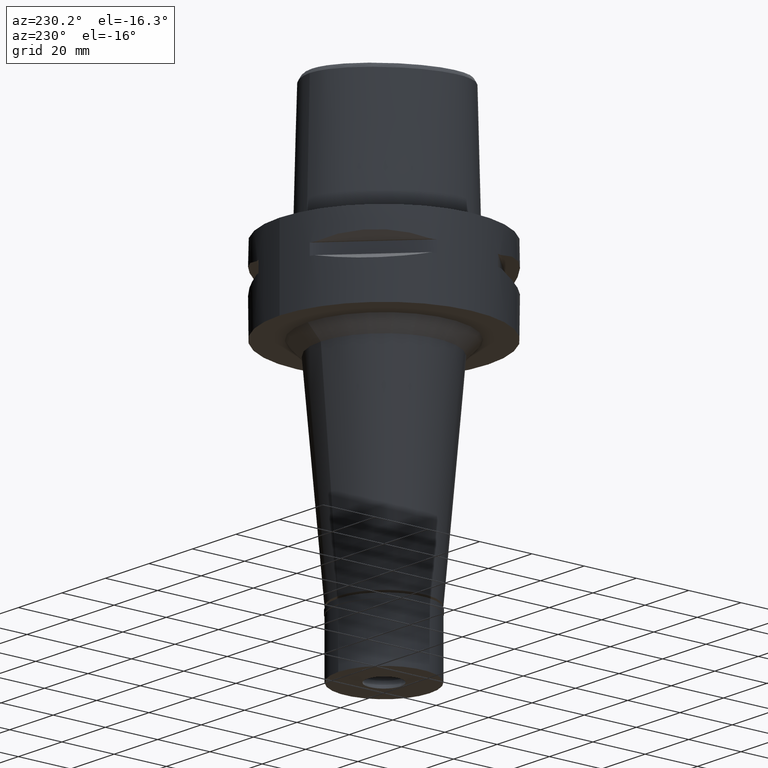
[diagram: clean part render]
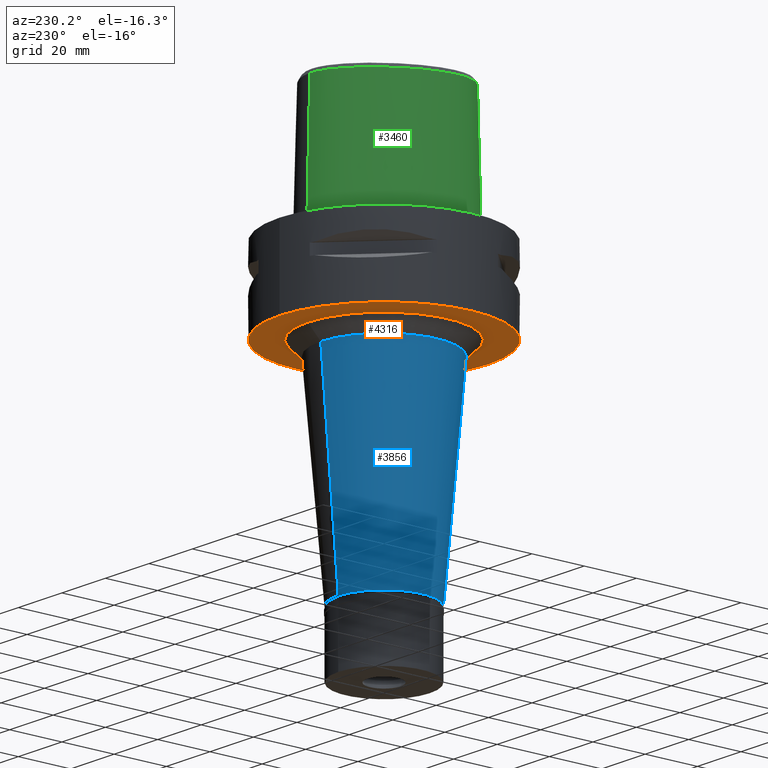
[diagram: same view with three faces highlighted in distinct colors, each labeled with its STEP entity id]
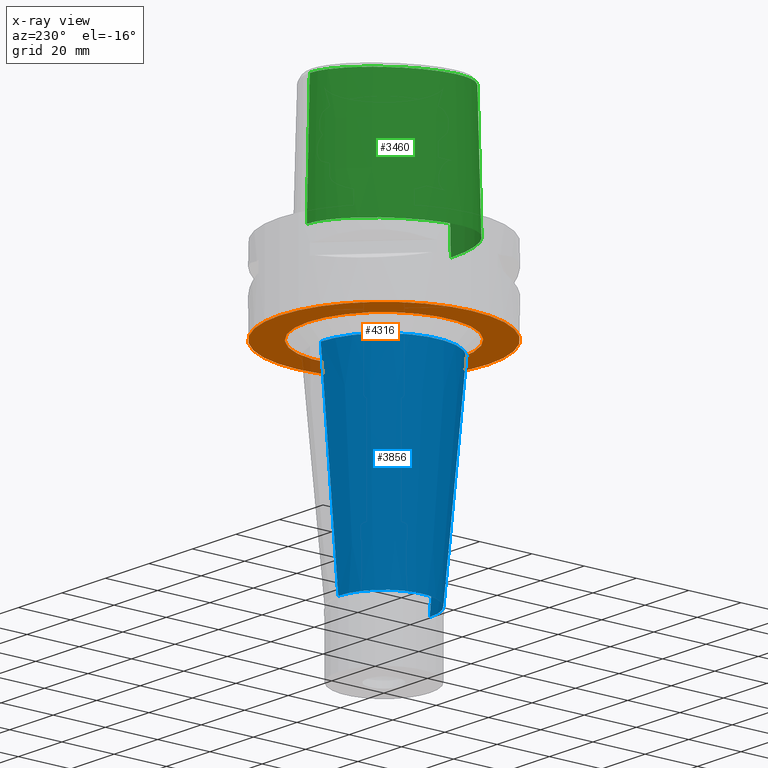
[diagram: x-ray of the same camera — body ghosted, the three highlighted faces saturated]
A machine part, auxiliary view with three faces highlighted in distinct colors.
The next image is the same camera in x-ray (body ghosted, the three faces saturated) — at least one of them is partly hidden behind the body in this view.
Their STEP definitions:

[orange] entity #4316 — the highlighted planar face has unit normal (0, 0, -1).
#172 = EDGE_CURVE ( 'NONE', #1265, #3674, #1290, .T. ) ;
#368 = VERTEX_POINT ( 'NONE', #1227 ) ;
#496 = ORIENTED_EDGE ( 'NONE', *, *, #1636, .F. ) ;
#651 = EDGE_LOOP ( 'NONE', ( #3302, #496 ) ) ;
#786 = CIRCLE ( 'NONE', #2287, 40.00000000000000000 ) ;
#1042 = EDGE_CURVE ( 'NONE', #3674, #1265, #4939, .T. ) ;
#1099 = ORIENTED_EDGE ( 'NONE', *, *, #1042, .F. ) ;
#1115 = CARTESIAN_POINT ( 'NONE',  ( 0.0000000000000000000, 0.0000000000000000000, -30.00000000000000000 ) ) ;
#1227 = CARTESIAN_POINT ( 'NONE',  ( 0.0000000000000000000, -40.00000000000000000, -30.00000000000000000 ) ) ;
#1265 = VERTEX_POINT ( 'NONE', #3253 ) ;
#1275 = VERTEX_POINT ( 'NONE', #3623 ) ;
#1290 = CIRCLE ( 'NONE', #5106, 29.21038049243999879 ) ;
#1384 = DIRECTION ( 'NONE',  ( 0.0000000000000000000, 0.0000000000000000000, 1.000000000000000000 ) ) ;
#1456 = CIRCLE ( 'NONE', #2941, 40.00000000000000000 ) ;
#1529 = EDGE_CURVE ( 'NONE', #1275, #368, #786, .T. ) ;
#1582 = DIRECTION ( 'NONE',  ( 0.0000000000000000000, 0.0000000000000000000, -1.000000000000000000 ) ) ;
#1636 = EDGE_CURVE ( 'NONE', #368, #1275, #1456, .T. ) ;
#1656 = FACE_BOUND ( 'NONE', #4721, .T. ) ;
#1717 = DIRECTION ( 'NONE',  ( 0.0000000000000000000, 1.000000000000000000, 0.0000000000000000000 ) ) ;
#1913 = DIRECTION ( 'NONE',  ( 0.0000000000000000000, 1.000000000000000000, 0.0000000000000000000 ) ) ;
#1925 = DIRECTION ( 'NONE',  ( 0.0000000000000000000, 0.0000000000000000000, -1.000000000000000000 ) ) ;
#2287 = AXIS2_PLACEMENT_3D ( 'NONE', #3372, #1384, #1717 ) ;
#2374 = FACE_OUTER_BOUND ( 'NONE', #651, .T. ) ;
#2691 = AXIS2_PLACEMENT_3D ( 'NONE', #5119, #1582, #1913 ) ;
#2941 = AXIS2_PLACEMENT_3D ( 'NONE', #2978, #3764, #4126 ) ;
#2978 = CARTESIAN_POINT ( 'NONE',  ( 0.0000000000000000000, 1.303207891312999846E-14, -30.00000000000000000 ) ) ;
#3253 = CARTESIAN_POINT ( 'NONE',  ( 0.0000000000000000000, -29.21038049243999879, -30.00000000000000000 ) ) ;
#3302 = ORIENTED_EDGE ( 'NONE', *, *, #1529, .F. ) ;
#3372 = CARTESIAN_POINT ( 'NONE',  ( 0.0000000000000000000, 1.303207891312999846E-14, -30.00000000000000000 ) ) ;
#3433 = ORIENTED_EDGE ( 'NONE', *, *, #172, .F. ) ;
#3623 = CARTESIAN_POINT ( 'NONE',  ( 0.0000000000000000000, 40.00000000000000000, -30.00000000000000000 ) ) ;
#3674 = VERTEX_POINT ( 'NONE', #4233 ) ;
#3764 = DIRECTION ( 'NONE',  ( 0.0000000000000000000, 0.0000000000000000000, 1.000000000000000000 ) ) ;
#3841 = DIRECTION ( 'NONE',  ( 0.0000000000000000000, 0.0000000000000000000, -1.000000000000000000 ) ) ;
#4126 = DIRECTION ( 'NONE',  ( 0.0000000000000000000, -1.000000000000000000, 0.0000000000000000000 ) ) ;
#4233 = CARTESIAN_POINT ( 'NONE',  ( 0.0000000000000000000, 29.21038049243999879, -30.00000000000000000 ) ) ;
#4283 = PLANE ( 'NONE',  #4319 ) ;
#4316 = ADVANCED_FACE ( 'NONE', ( #2374, #1656 ), #4283, .T. ) ;
#4319 = AXIS2_PLACEMENT_3D ( 'NONE', #4654, #1925, #5099 ) ;
#4654 = CARTESIAN_POINT ( 'NONE',  ( 0.0000000000000000000, 0.0000000000000000000, -30.00000000000000000 ) ) ;
#4721 = EDGE_LOOP ( 'NONE', ( #1099, #3433 ) ) ;
#4730 = DIRECTION ( 'NONE',  ( 0.0000000000000000000, -1.000000000000000000, 0.0000000000000000000 ) ) ;
#4939 = CIRCLE ( 'NONE', #2691, 29.21038049243999879 ) ;
#5099 = DIRECTION ( 'NONE',  ( 0.0000000000000000000, -1.000000000000000000, 0.0000000000000000000 ) ) ;
#5106 = AXIS2_PLACEMENT_3D ( 'NONE', #1115, #3841, #4730 ) ;
#5119 = CARTESIAN_POINT ( 'NONE',  ( 0.0000000000000000000, 0.0000000000000000000, -30.00000000000000000 ) ) ;

[blue] entity #3856 — the highlighted conical surface has half-angle 5 deg.
#75 = CONICAL_SURFACE ( 'NONE', #659, 20.85519024622000117, 0.08726646259969973729 ) ;
#267 = DIRECTION ( 'NONE',  ( 0.0000000000000000000, 0.08715574274767391716, -0.9961946980917442129 ) ) ;
#313 = CARTESIAN_POINT ( 'NONE',  ( 0.0000000000000000000, 24.21038049243999879, -35.00000000000000000 ) ) ;
#324 = CARTESIAN_POINT ( 'NONE',  ( 0.0000000000000000000, 0.0000000000000000000, -35.00000000000000000 ) ) ;
#407 = DIRECTION ( 'NONE',  ( 0.0000000000000000000, 1.000000000000000000, 0.0000000000000000000 ) ) ;
#659 = AXIS2_PLACEMENT_3D ( 'NONE', #4741, #5134, #1236 ) ;
#826 = CARTESIAN_POINT ( 'NONE',  ( 0.0000000000000000000, 0.0000000000000000000, -111.6999999999999886 ) ) ;
#850 = EDGE_CURVE ( 'NONE', #3951, #3576, #2254, .T. ) ;
#1142 = DIRECTION ( 'NONE',  ( 0.0000000000000000000, 0.0000000000000000000, -1.000000000000000000 ) ) ;
#1152 = VERTEX_POINT ( 'NONE', #2716 ) ;
#1168 = CIRCLE ( 'NONE', #4067, 24.21038049243999879 ) ;
#1188 = EDGE_LOOP ( 'NONE', ( #5002, #2866, #2717, #4676 ) ) ;
#1236 = DIRECTION ( 'NONE',  ( 0.0000000000000000000, 1.000000000000000000, 0.0000000000000000000 ) ) ;
#1489 = DIRECTION ( 'NONE',  ( 0.0000000000000000000, -0.08715574274767391716, -0.9961946980917442129 ) ) ;
#1692 = AXIS2_PLACEMENT_3D ( 'NONE', #826, #1998, #407 ) ;
#1998 = DIRECTION ( 'NONE',  ( 0.0000000000000000000, 0.0000000000000000000, 1.000000000000000000 ) ) ;
#2211 = EDGE_CURVE ( 'NONE', #1152, #3576, #4770, .T. ) ;
#2254 = LINE ( 'NONE', #4243, #2862 ) ;
#2365 = DIRECTION ( 'NONE',  ( 0.0000000000000000000, -1.000000000000000000, 0.0000000000000000000 ) ) ;
#2705 = FACE_OUTER_BOUND ( 'NONE', #1188, .T. ) ;
#2716 = CARTESIAN_POINT ( 'NONE',  ( 0.0000000000000000000, 17.50000000000000000, -111.6999999999999886 ) ) ;
#2717 = ORIENTED_EDGE ( 'NONE', *, *, #3173, .T. ) ;
#2862 = VECTOR ( 'NONE', #267, 1000.000000000000000 ) ;
#2866 = ORIENTED_EDGE ( 'NONE', *, *, #850, .F. ) ;
#3173 = EDGE_CURVE ( 'NONE', #3951, #3998, #1168, .T. ) ;
#3437 = LINE ( 'NONE', #4660, #4229 ) ;
#3490 = CARTESIAN_POINT ( 'NONE',  ( 0.0000000000000000000, -24.21038049243999879, -35.00000000000000000 ) ) ;
#3576 = VERTEX_POINT ( 'NONE', #5049 ) ;
#3624 = EDGE_CURVE ( 'NONE', #3998, #1152, #3437, .T. ) ;
#3856 = ADVANCED_FACE ( 'NONE', ( #2705 ), #75, .T. ) ;
#3951 = VERTEX_POINT ( 'NONE', #3490 ) ;
#3998 = VERTEX_POINT ( 'NONE', #313 ) ;
#4067 = AXIS2_PLACEMENT_3D ( 'NONE', #324, #1142, #2365 ) ;
#4229 = VECTOR ( 'NONE', #1489, 1000.000000000000000 ) ;
#4243 = CARTESIAN_POINT ( 'NONE',  ( 0.0000000000000000000, -24.21038049243999879, -35.00000000000000000 ) ) ;
#4660 = CARTESIAN_POINT ( 'NONE',  ( 0.0000000000000000000, 24.21038049243999879, -35.00000000000000000 ) ) ;
#4676 = ORIENTED_EDGE ( 'NONE', *, *, #3624, .T. ) ;
#4741 = CARTESIAN_POINT ( 'NONE',  ( 0.0000000000000000000, 0.0000000000000000000, -73.34999999999999432 ) ) ;
#4770 = CIRCLE ( 'NONE', #1692, 17.50000000000000000 ) ;
#5002 = ORIENTED_EDGE ( 'NONE', *, *, #2211, .T. ) ;
#5049 = CARTESIAN_POINT ( 'NONE',  ( 0.0000000000000000000, -17.50000000000000000, -111.6999999999999886 ) ) ;
#5134 = DIRECTION ( 'NONE',  ( 0.0000000000000000000, 0.0000000000000000000, 1.000000000000000000 ) ) ;

[green] entity #3460 — the highlighted face is a freeform B-spline surface patch.
#3 = CARTESIAN_POINT ( 'NONE',  ( 0.8850788435429999268, 29.16624660155000015, 15.19677031794999955 ) ) ;
#23 = EDGE_CURVE ( 'NONE', #2994, #1189, #4524, .T. ) ;
#28 = VERTEX_POINT ( 'NONE', #5014 ) ;
#30 = CARTESIAN_POINT ( 'NONE',  ( -1.451045074373000022E-08, -24.57504746727000011, 40.00000005214000254 ) ) ;
#31 = CARTESIAN_POINT ( 'NONE',  ( -26.00056139767000118, -13.24168029910000044, 15.19677031794999955 ) ) ;
#32 = CARTESIAN_POINT ( 'NONE',  ( -1.791332517422718151, -25.02133236723712173, 20.81740716610669395 ) ) ;
#56 = CARTESIAN_POINT ( 'NONE',  ( -12.43420514706000013, 23.14497626767000327, 47.45113997237000092 ) ) ;
#77 = CARTESIAN_POINT ( 'NONE',  ( 0.8321919550414000888, -24.38153428777999920, 47.45113997237000092 ) ) ;
#105 = CARTESIAN_POINT ( 'NONE',  ( -6.584202213235999857, -24.46732445046000137, 31.32395514516000290 ) ) ;
#148 = CARTESIAN_POINT ( 'NONE',  ( -24.95856547251000279, -14.40983449368000180, 31.32395514516000290 ) ) ;
#212 = CARTESIAN_POINT ( 'NONE',  ( -20.71467387648612757, -18.66855143330699818, 46.52070903171005511 ) ) ;
#236 = CARTESIAN_POINT ( 'NONE',  ( -4.198926685531662706, -24.72160612811941505, 26.75259212958649613 ) ) ;
#264 = CARTESIAN_POINT ( 'NONE',  ( -26.68853359098593003, -5.367220537272975989, 46.52070903171005511 ) ) ;
#265 = CARTESIAN_POINT ( 'NONE',  ( -2.182391158249093355, -24.80062287573412760, 28.99314679185866694 ) ) ;
#284 = ORIENTED_EDGE ( 'NONE', *, *, #4868, .F. ) ;
#285 = CARTESIAN_POINT ( 'NONE',  ( 3.426421325429000475E-11, 29.57499999998999840, 6.813068627782999373E-14 ) ) ;
#295 = CARTESIAN_POINT ( 'NONE',  ( -1.482686770870140336, -24.81966152212502763, 29.30289444251079445 ) ) ;
#321 = CARTESIAN_POINT ( 'NONE',  ( -1.722296434336843429, -24.81387508079693660, 29.21144792399064372 ) ) ;
#348 = CARTESIAN_POINT ( 'NONE',  ( -25.23075706258000039, 6.836210430874999133, -0.9304145092621000090 ) ) ;
#349 = CARTESIAN_POINT ( 'NONE',  ( -3.896481458106559437, -24.85034248778501009, 22.65020889969181184 ) ) ;
#373 = CARTESIAN_POINT ( 'NONE',  ( -26.66520864470000163, -5.367805583557000659, 47.45113997237000092 ) ) ;
#374 = CARTESIAN_POINT ( 'NONE',  ( -2.349040166736644064, -24.99044712210630692, 21.10040994411707516 ) ) ;
#375 = EDGE_CURVE ( 'NONE', #1487, #2482, #1973, .T. ) ;
#396 = CARTESIAN_POINT ( 'NONE',  ( -26.50159624694000371, -8.602222727240999234, 47.45113997237000092 ) ) ;
#397 = CARTESIAN_POINT ( 'NONE',  ( -3.825895809632643640, -24.85889621362734303, 22.53711802513209506 ) ) ;
#423 = CARTESIAN_POINT ( 'NONE',  ( -26.01411824369999692, 1.699187952778999922, 31.32395514516000290 ) ) ;
#448 = CARTESIAN_POINT ( 'NONE',  ( 0.5552374596068999635, 28.37983254369000008, 47.45113997237000092 ) ) ;
#449 = CARTESIAN_POINT ( 'NONE',  ( -3.227056402119997447, -24.92183285210591492, 21.79239637393092721 ) ) ;
#473 = CARTESIAN_POINT ( 'NONE',  ( 0.5548736444810999924, -24.38637832012999951, 47.45113997237000092 ) ) ;
#499 = CARTESIAN_POINT ( 'NONE',  ( -18.36798846330000146, -21.11924011219999997, 15.19677031794999955 ) ) ;
#550 = CARTESIAN_POINT ( 'NONE',  ( -2.373852717712999993, -25.21827343833000157, 15.19677031794999955 ) ) ;
#597 = CARTESIAN_POINT ( 'NONE',  ( -4.602965878455999693, -24.35127227233000013, 40.00000000000000000 ) ) ;
#630 = CARTESIAN_POINT ( 'NONE',  ( -0.9629684636073497783, 28.41206041874252008, 46.52070903171005511 ) ) ;
#631 = CARTESIAN_POINT ( 'NONE',  ( -2.249867388139983770, -24.79844751147312110, 28.95562542824797347 ) ) ;
#634 = B_SPLINE_CURVE_WITH_KNOTS ( 'NONE', 3,
 ( #1951, #1565, #1857, #2203, #3783, #2686, #212, #3387, #653, #1804, #2660, #4978, #2614, #264, #3860, #999, #1910, #2249, #4192, #5033, #4270, #2587, #2997, #630, #711 ),
 .UNSPECIFIED., .F., .F.,
 ( 4, 1, 1, 1, 1, 1, 1, 1, 1, 1, 1, 1, 1, 1, 1, 1, 1, 1, 1, 1, 1, 1, 4 ),
 ( 0.0000000000000000000, 0.03735859270279192484, 0.08111502030725337153, 0.1248714479117149362, 0.1686278755159663911, 0.2123843031204278309, 0.2561407307248894094, 0.2780189445269626858, 0.2998971583291408782, 0.3217753721314240978, 0.3436535859336024012, 0.3874100135380638688, 0.4311664411423154486, 0.4749228687467769161, 0.5186792963512384391, 0.5624357239554899079, 0.6499485791644129540, 0.7374614343731259458, 0.8249742895819438537, 0.8687307171863004607, 0.9124871447907410005, 0.9562435723951290267, 1.000000000000000000 ),
 .UNSPECIFIED. ) ;
#636 = CARTESIAN_POINT ( 'NONE',  ( -26.34912732470910157, -13.39455076042217385, 2.070062342244063935E-06 ) ) ;
#653 = CARTESIAN_POINT ( 'NONE',  ( -23.83579125613553273, -15.43164133759489332, 46.52070903171005511 ) ) ;
#660 = CARTESIAN_POINT ( 'NONE',  ( -27.68378748685482904, -8.751933587218399424, 2.070062342244063935E-06 ) ) ;
#681 = CARTESIAN_POINT ( 'NONE',  ( -4.536359085941239044, -24.72544551544415015, 25.35955479186052841 ) ) ;
#686 = CARTESIAN_POINT ( 'NONE',  ( -11.74025984123380084, -24.13566401246772131, 2.070062342244063935E-06 ) ) ;
#703 = CARTESIAN_POINT ( 'NONE',  ( -4.472216406693000579, -24.20008985674000357, 46.52070903171000538 ) ) ;
#711 = CARTESIAN_POINT ( 'NONE',  ( -1.302363811805000078E-11, 28.41206021534999593, 46.52071719450999154 ) ) ;
#712 = CARTESIAN_POINT ( 'NONE',  ( -3.205390121192459585, -24.76204090357539300, 28.22925085367091569 ) ) ;
#728 = DIRECTION ( 'NONE',  ( -5.731149799637813189E-13, -0.02499051295403921166, -0.9996876883618673881 ) ) ;
#735 = CARTESIAN_POINT ( 'NONE',  ( -9.316733117691999411, 26.81182150708999856, -0.9304145092621000090 ) ) ;
#736 = CARTESIAN_POINT ( 'NONE',  ( -4.550009659928405448, -24.73228693208369933, 25.03285394944704123 ) ) ;
#762 = CARTESIAN_POINT ( 'NONE',  ( -27.16099297665000023, -1.823107493887999864, 15.19677031794999955 ) ) ;
#763 = CARTESIAN_POINT ( 'NONE',  ( -0.5686770761276753738, -25.06378435149000339, 20.45000000000001350 ) ) ;
#791 = CARTESIAN_POINT ( 'NONE',  ( 0.6077626424049999976, 29.58843421447999944, -0.9304145092621000090 ) ) ;
#792 = CARTESIAN_POINT ( 'NONE',  ( -3.864901861996224763, -24.85421915751038924, 22.59833191710567490 ) ) ;
#815 = CARTESIAN_POINT ( 'NONE',  ( 0.5902542481390000706, 29.18556699088000173, 15.19677031794999955 ) ) ;
#840 = CARTESIAN_POINT ( 'NONE',  ( -24.48145222183000058, 6.531540493901000666, 31.32395514516000290 ) ) ;
#866 = CARTESIAN_POINT ( 'NONE',  ( -14.86558285775999977, -21.85772789082999878, 47.45113997237000092 ) ) ;
#868 = CARTESIAN_POINT ( 'NONE',  ( -3.797137772289172819, -24.86229941254662279, 22.49313827486259143 ) ) ;
#875 = ORIENTED_EDGE ( 'NONE', *, *, #3548, .F. ) ;
#890 = CARTESIAN_POINT ( 'NONE',  ( -20.94550183603999827, -18.97246392873000076, 31.32395514516000290 ) ) ;
#943 = CARTESIAN_POINT ( 'NONE',  ( -2.393548608089000052, -25.62160468917999978, -0.9304145092621000090 ) ) ;
#970 = CARTESIAN_POINT ( 'NONE',  ( -2.354156827336999935, -24.81494218747999980, 31.32395514516000290 ) ) ;
#999 = CARTESIAN_POINT ( 'NONE',  ( -25.64632274977875426, 1.601536978524678023, 46.52070903171005511 ) ) ;
#1017 = LINE ( 'NONE', #3824, #4324 ) ;
#1026 = CARTESIAN_POINT ( 'NONE',  ( -2.352923008986411713, -24.79499099983799226, 28.89459205334613401 ) ) ;
#1032 = CARTESIAN_POINT ( 'NONE',  ( -13.21796077126104763, 24.04386714829173499, 2.070062342244063935E-06 ) ) ;
#1053 = CARTESIAN_POINT ( 'NONE',  ( -4.322680882352820220, -24.71812462909635855, 26.45319451589575266 ) ) ;
#1067 = CARTESIAN_POINT ( 'NONE',  ( -4.516620139914707011, -24.24973684088320525, 44.34713935447333455 ) ) ;
#1075 = CARTESIAN_POINT ( 'NONE',  ( -4.183313010706772417, -24.72206008749300565, 26.78965014441196146 ) ) ;
#1080 = CARTESIAN_POINT ( 'NONE',  ( -21.42129056219241434, -19.59889644297837208, 2.070062342244063935E-06 ) ) ;
#1083 = CARTESIAN_POINT ( 'NONE',  ( -3.083107012282058967, -24.50056602082055690, 40.00000010711482901 ) ) ;
#1104 = CARTESIAN_POINT ( 'NONE',  ( -0.5644801122068427990, -24.83439132317404940, 29.52465347867334344 ) ) ;
#1136 = CARTESIAN_POINT ( 'NONE',  ( -2.892852093882000375, 28.17405733821000169, 47.45113997237000092 ) ) ;
#1137 = CARTESIAN_POINT ( 'NONE',  ( -4.544092989177816122, -24.72741046393047881, 25.25074796832976531 ) ) ;
#1164 = CARTESIAN_POINT ( 'NONE',  ( -24.85610464220000182, 6.683875462388000344, 15.19677031794999955 ) ) ;
#1165 = CARTESIAN_POINT ( 'NONE',  ( -1.748501813549842465, -25.02335543620021951, 20.79936485166496496 ) ) ;
#1189 = VERTEX_POINT ( 'NONE', #4829 ) ;
#1190 = CARTESIAN_POINT ( 'NONE',  ( -4.858745206270110643E-09, -24.74922215084186661, 33.03333351495469827 ) ) ;
#1191 = CARTESIAN_POINT ( 'NONE',  ( -2.979937744814999956, 28.57037853699000252, 31.32395514516000290 ) ) ;
#1202 = B_SPLINE_CURVE_WITH_KNOTS ( 'NONE', 3,
 ( #5057, #1497, #1104, #3105, #1911, #2687, #295, #5034, #3834, #4242, #321, #1527, #5087, #3449, #265, #631, #1026, #2227, #2331, #4271, #3075, #2615, #4701, #3807, #1422, #1858, #3862, #2280, #3500, #712, #1885, #4979, #1474, #2307, #3472, #4618, #2661, #3048, #4297, #1075, #4669, #236, #3028, #1053, #4641, #3886, #3419, #681, #1137, #2251, #2714, #736, #4193, #1830, #3916, #1805, #4591, #5008, #3389, #1448, #2639, #2998, #4216, #3134, #4428, #1941, #4351, #349, #792, #397, #2048, #868, #2814, #2462, #3531, #3944, #1581, #1651, #3581, #4017, #5116, #449, #4749, #2739, #374, #3236, #1555, #4826, #2409, #1967, #32, #3557, #4724, #1165, #4323, #763, #3604 ),
 .UNSPECIFIED., .F., .F.,
 ( 4, 2, 2, 1, 1, 1, 2, 2, 2, 2, 1, 1, 2, 2, 2, 1, 1, 1, 2, 2, 2, 2, 2, 1, 1, 2, 2, 2, 2, 1, 2, 2, 2, 2, 1, 1, 1, 2, 2, 2, 2, 1, 1, 2, 2, 2, 1, 1, 1, 2, 2, 2, 2, 2, 1, 1, 2, 2, 4 ),
 ( 0.0000000000000000000, 0.06249999999998992473, 0.09374999999998488709, 0.1093749999999823752, 0.1171874999999811123, 0.1210937499999804462, 0.1230468749999802797, 0.1249999999999800993, 0.1562499999999802935, 0.1718749999999803768, 0.1796874999999803491, 0.1835937499999803491, 0.1855468749999804878, 0.1874999999999806544, 0.2187499999999830969, 0.2343749999999845401, 0.2421874999999852063, 0.2460937499999855393, 0.2480468749999859279, 0.2499999999999863443, 0.3125000000000101030, 0.3437500000000223710, 0.3593750000000288103, 0.3671875000000316969, 0.3710937500000330846, 0.3730468750000334732, 0.3750000000000338063, 0.4375000000000313638, 0.4687500000000298095, 0.4843750000000289768, 0.4921875000000289768, 0.5000000000000289768, 0.5625000000000310862, 0.5937500000000318634, 0.6093750000000318634, 0.6171875000000319744, 0.6210937500000316414, 0.6230468750000315303, 0.6250000000000314193, 0.6562500000000272005, 0.6718750000000250910, 0.6796875000000240918, 0.6835937500000235367, 0.6855468750000230926, 0.6875000000000225375, 0.7187500000000142109, 0.7343750000000098810, 0.7421875000000075495, 0.7460937500000064393, 0.7480468750000061062, 0.7500000000000057732, 0.8124999999999988898, 0.8437499999999957812, 0.8593749999999942268, 0.8671874999999935607, 0.8710937499999932276, 0.8730468749999930056, 0.8749999999999927836, 1.000000000000000000 ),
 .UNSPECIFIED. ) ;
#1220 = CARTESIAN_POINT ( 'NONE',  ( -25.95531692224000153, -11.08496012566000033, 47.45113997237000092 ) ) ;
#1241 = CARTESIAN_POINT ( 'NONE',  ( -5.801139416968000617, 27.25218155801999842, 47.45113997237000092 ) ) ;
#1254 = ORIENTED_EDGE ( 'NONE', *, *, #4655, .F. ) ;
#1267 = CARTESIAN_POINT ( 'NONE',  ( -23.15870204153999978, -17.49879693291000038, 15.19677031794999955 ) ) ;
#1366 = CARTESIAN_POINT ( 'NONE',  ( -6.695047936615999618, -25.26858194700999860, -0.9304145092621000090 ) ) ;
#1381 = CARTESIAN_POINT ( 'NONE',  ( -9.304563379537732715, 26.79191401820675011, 2.070062342244063935E-06 ) ) ;
#1422 = CARTESIAN_POINT ( 'NONE',  ( -2.944900302943598280, -24.77298581947536960, 28.46923970402222537 ) ) ;
#1448 = CARTESIAN_POINT ( 'NONE',  ( -4.231109674115376862, -24.80473516988228866, 23.32640847146414487 ) ) ;
#1466 = CARTESIAN_POINT ( 'NONE',  ( -4.560197131398992632, -24.30012325357083469, 42.17356967723666372 ) ) ;
#1474 = CARTESIAN_POINT ( 'NONE',  ( -3.657706900528193028, -24.74222987758971115, 27.72260022702115023 ) ) ;
#1478 = CARTESIAN_POINT ( 'NONE',  ( -1.338855420046000202E-11, -25.57499999999999929, 7.449596495234999810E-14 ) ) ;
#1487 = VERTEX_POINT ( 'NONE', #4107 ) ;
#1497 = CARTESIAN_POINT ( 'NONE',  ( -0.2769662722958332046, -24.83629963747999625, 29.54999999999999716 ) ) ;
#1527 = CARTESIAN_POINT ( 'NONE',  ( -1.733314166582772708, -24.81359117582309537, 29.20692116581516729 ) ) ;
#1554 = CARTESIAN_POINT ( 'NONE',  ( -26.40443225111000203, 1.802817670160000052, 15.19677031794999955 ) ) ;
#1555 = CARTESIAN_POINT ( 'NONE',  ( -2.039991806419605869, -25.00858519317954887, 20.93235562228001356 ) ) ;
#1565 = CARTESIAN_POINT ( 'NONE',  ( -5.572548441001424990, -24.09475885057446831, 46.52070903171005511 ) ) ;
#1580 = CARTESIAN_POINT ( 'NONE',  ( -13.23332856346000064, 24.06149249965999815, -0.9304145092621000090 ) ) ;
#1581 = CARTESIAN_POINT ( 'NONE',  ( -3.399231802462690855, -24.90521494129050595, 21.97387284700375432 ) ) ;
#1604 = CARTESIAN_POINT ( 'NONE',  ( -26.79474625852000003, 1.906447387541000182, -0.9304145092621000090 ) ) ;
#1630 = CARTESIAN_POINT ( 'NONE',  ( -21.30723580177000187, 12.30173102326999945, 47.45113997237000092 ) ) ;
#1650 = CARTESIAN_POINT ( 'NONE',  ( -24.14246363460999945, -15.65707284174000158, 31.32395514516000290 ) ) ;
#1651 = CARTESIAN_POINT ( 'NONE',  ( -3.310528231614958017, -24.91386642802240203, 21.87824841565020151 ) ) ;
#1701 = CARTESIAN_POINT ( 'NONE',  ( 0.5689259951320000397, -25.59577895991000318, -0.9304145092621000090 ) ) ;
#1745 = CARTESIAN_POINT ( 'NONE',  ( -22.57751556034999751, -16.93548375864000022, 47.45113997237000092 ) ) ;
#1804 = CARTESIAN_POINT ( 'NONE',  ( -24.62887906780681035, -14.21948995895348844, 46.52070903171005511 ) ) ;
#1805 = CARTESIAN_POINT ( 'NONE',  ( -4.406213798168645113, -24.77565163120073422, 23.85472934568140957 ) ) ;
#1830 = CARTESIAN_POINT ( 'NONE',  ( -4.525164906393142061, -24.74975131237585302, 24.43996234641500820 ) ) ;
#1857 = CARTESIAN_POINT ( 'NONE',  ( -7.937300651754087610, -23.78071178104124783, 46.52070903171005511 ) ) ;
#1858 = CARTESIAN_POINT ( 'NONE',  ( -3.029613744919225748, -24.76954858878827537, 28.39612668127735873 ) ) ;
#1885 = CARTESIAN_POINT ( 'NONE',  ( -3.211065830876444149, -24.76179211193618102, 28.22361125334742127 ) ) ;
#1910 = CARTESIAN_POINT ( 'NONE',  ( -24.12841474588384116, 6.387994236496768785, 46.52070903171005511 ) ) ;
#1911 = CARTESIAN_POINT ( 'NONE',  ( -1.150414049173519748, -24.82628098737378508, 29.40485804970605344 ) ) ;
#1916 = CARTESIAN_POINT ( 'NONE',  ( -2.676740182709702154, -25.57499994824797795, 2.070062342244063935E-06 ) ) ;
#1940 = CARTESIAN_POINT ( 'NONE',  ( -27.56041892321000120, -1.762105663640000097, -0.9304145092621000090 ) ) ;
#1941 = CARTESIAN_POINT ( 'NONE',  ( -3.994669282579361269, -24.83794919743791141, 22.82040209576820899 ) ) ;
#1951 = CARTESIAN_POINT ( 'NONE',  ( -4.472216406693000579, -24.20008985674000357, 46.52070903171000538 ) ) ;
#1966 = CARTESIAN_POINT ( 'NONE',  ( -8.683908141632000977, 25.77663438832999887, 47.45113997237000092 ) ) ;
#1967 = CARTESIAN_POINT ( 'NONE',  ( -1.843442154714972636, -25.01881181296656109, 20.83994273181264489 ) ) ;
#1973 = LINE ( 'NONE', #2368, #2364 ) ;
#1987 = CARTESIAN_POINT ( 'NONE',  ( -6.271543170828000058, 28.37237220596999876, -0.9304145092621000090 ) ) ;
#2015 = CARTESIAN_POINT ( 'NONE',  ( -26.76156703008000193, -1.884109324135999852, 31.32395514516000290 ) ) ;
#2046 = CARTESIAN_POINT ( 'NONE',  ( -0.7257524937796999698, 29.22811258313999971, 15.19677031794999955 ) ) ;
#2047 = B_SPLINE_CURVE_WITH_KNOTS ( 'NONE', 3,
 ( #2643, #3734, #4219, #3393, #1381, #1032, #2950, #4567, #2592, #4171, #4985, #2619, #660, #4197, #636, #2230, #3812, #2337, #1080, #2665, #3079, #686, #3950, #1916, #3506 ),
 .UNSPECIFIED., .F., .F.,
 ( 4, 1, 1, 1, 1, 1, 1, 1, 1, 1, 1, 1, 1, 1, 1, 1, 1, 1, 1, 1, 1, 1, 4 ),
 ( 0.0000000000000000000, 0.04166666666708999933, 0.08333333333372000551, 0.1250000000004000134, 0.1666666666670000019, 0.2500000000002999823, 0.3333333333335000148, 0.4166666666668999985, 0.4583333333333999837, 0.5000000000001000311, 0.5416666666667999674, 0.5833333333333000637, 0.6250000000000000000, 0.6458333333333000637, 0.6666666666667000474, 0.6875000000000000000, 0.7083333333332000326, 0.7499999999999000799, 0.7916666666666000163, 0.8333333333331000015, 0.8749999999998000488, 0.9166666666664999852, 1.000000000000000000 ),
 .UNSPECIFIED. ) ;
#2048 = CARTESIAN_POINT ( 'NONE',  ( -3.808704889424081141, -24.86093372512831934, 22.51074749453151114 ) ) ;
#2072 = CARTESIAN_POINT ( 'NONE',  ( 0.8462420186221000229, -25.18772734667000179, 15.19677031794999955 ) ) ;
#2096 = CARTESIAN_POINT ( 'NONE',  ( -17.98126122117999870, -20.40884540134999980, 47.45113997237000092 ) ) ;
#2121 = CARTESIAN_POINT ( 'NONE',  ( -24.79336081514999890, -16.13554022500000329, -0.9304145092621000090 ) ) ;
#2141 = CARTESIAN_POINT ( 'NONE',  ( -23.44929528213000225, -17.78045352005000268, -0.9304145092621000090 ) ) ;
#2166 = CARTESIAN_POINT ( 'NONE',  ( -25.30843713743000123, -14.61183299384000023, 15.19677031794999955 ) ) ;
#2203 = CARTESIAN_POINT ( 'NONE',  ( -11.43620194736087292, -23.01113699853270589, 46.52070903171005511 ) ) ;
#2227 = CARTESIAN_POINT ( 'NONE',  ( -2.404910036721158217, -24.79321437770951420, 28.86288751850017320 ) ) ;
#2230 = CARTESIAN_POINT ( 'NONE',  ( -25.63812385368616020, -14.80217770844714842, 2.070062342244063935E-06 ) ) ;
#2249 = CARTESIAN_POINT ( 'NONE',  ( -21.32746397970338847, 12.31340991043551547, 46.52070903171005511 ) ) ;
#2251 = CARTESIAN_POINT ( 'NONE',  ( -4.547910621292747813, -24.72974527037224846, 25.14250056299538016 ) ) ;
#2280 = CARTESIAN_POINT ( 'NONE',  ( -3.172181247292560791, -24.76348918694394285, 28.26195868750397011 ) ) ;
#2307 = CARTESIAN_POINT ( 'NONE',  ( -3.900686180413632798, -24.73222278675433472, 27.34720371155059482 ) ) ;
#2330 = CARTESIAN_POINT ( 'NONE',  ( -22.00846691950999912, 12.70659196169999916, 15.19677031794999955 ) ) ;
#2331 = CARTESIAN_POINT ( 'NONE',  ( -2.466259342607413529, -24.79105701084885993, 28.82372012011356688 ) ) ;
#2337 = CARTESIAN_POINT ( 'NONE',  ( -23.43253025018043445, -17.76420406540813346, 2.070062342244063935E-06 ) ) ;
#2359 = CARTESIAN_POINT ( 'NONE',  ( -27.87808443180999873, -5.337383714047999383, -0.9304145092621000090 ) ) ;
#2364 = VECTOR ( 'NONE', #5148, 1000.000000000000227 ) ;
#2368 = CARTESIAN_POINT ( 'NONE',  ( -1.302363811805000078E-11, 28.41206021534999593, 46.52071719450999154 ) ) ;
#2385 = CARTESIAN_POINT ( 'NONE',  ( 0.9115101686250001167, 29.56851176079000254, -0.9304145092621000090 ) ) ;
#2401 = VERTEX_POINT ( 'NONE', #4295 ) ;
#2408 = CARTESIAN_POINT ( 'NONE',  ( -0.7039271460821000526, 28.82397287818000109, 31.32395514516000290 ) ) ;
#2409 = CARTESIAN_POINT ( 'NONE',  ( -1.888484788632114331, -25.01654759054937571, 20.86028587657970590 ) ) ;
#2433 = CARTESIAN_POINT ( 'NONE',  ( -17.45811261664999847, 19.27961879849000226, 15.19677031794999955 ) ) ;
#2461 = CARTESIAN_POINT ( 'NONE',  ( -25.26074790071000464, -12.91722050026000090, 47.45113997237000092 ) ) ;
#2462 = CARTESIAN_POINT ( 'NONE',  ( -3.702709904148338893, -24.87336589807970100, 22.35148037005132338 ) ) ;
#2467 = EDGE_CURVE ( 'NONE', #2994, #2401, #4337, .T. ) ;
#2482 = VERTEX_POINT ( 'NONE', #285 ) ;
#2485 = CARTESIAN_POINT ( 'NONE',  ( -20.70054128756999745, -18.64994419710999907, 47.45113997237000092 ) ) ;
#2505 = B_SPLINE_CURVE_WITH_KNOTS ( 'NONE', 3,
 ( #703, #1067, #1466, #597 ),
 .UNSPECIFIED., .F., .F.,
 ( 4, 4 ),
 ( 0.0000000000000000000, 1.000000000000000000 ),
 .UNSPECIFIED. ) ;
#2556 = CARTESIAN_POINT ( 'NONE',  ( 0.8392169868317000958, -24.78463081721999828, 31.32395514516000290 ) ) ;
#2587 = CARTESIAN_POINT ( 'NONE',  ( -5.810185802762783069, 27.27372406630559709, 46.52070903171005511 ) ) ;
#2592 = CARTESIAN_POINT ( 'NONE',  ( -25.20914245177593216, 6.827421855447250998, 2.070062342244063935E-06 ) ) ;
#2614 = CARTESIAN_POINT ( 'NONE',  ( -26.52477687771098758, -8.605158286269373846, 46.52070903171005511 ) ) ;
#2615 = CARTESIAN_POINT ( 'NONE',  ( -2.520279592226923437, -24.78912363236072380, 28.78824203054359998 ) ) ;
#2619 = CARTESIAN_POINT ( 'NONE',  ( -27.85475984554853923, -5.337968751301749748, 2.070062342244063935E-06 ) ) ;
#2639 = CARTESIAN_POINT ( 'NONE',  ( -4.219931661120496891, -24.80642684597902203, 23.29859562715307675 ) ) ;
#2643 = CARTESIAN_POINT ( 'NONE',  ( 3.426421325429000475E-11, 29.57499999998999840, 6.813068627782999373E-14 ) ) ;
#2645 = CARTESIAN_POINT ( 'NONE',  ( -1.451045074373000022E-08, -24.57504746727000011, 40.00000005214000254 ) ) ;
#2660 = CARTESIAN_POINT ( 'NONE',  ( -25.28208905154519925, -12.92658008282433180, 46.52070903171005511 ) ) ;
#2661 = CARTESIAN_POINT ( 'NONE',  ( -4.098396066246055902, -24.72479182399337105, 26.97739233805750203 ) ) ;
#2665 = CARTESIAN_POINT ( 'NONE',  ( -18.55019646600799277, -21.45394526690698100, 2.070062342244063935E-06 ) ) ;
#2686 = CARTESIAN_POINT ( 'NONE',  ( -17.99241701171380114, -20.42933791836796686, 46.52070903171005511 ) ) ;
#2687 = CARTESIAN_POINT ( 'NONE',  ( -1.371865276106448261, -24.82198728018540379, 29.33894196721532310 ) ) ;
#2713 = CARTESIAN_POINT ( 'NONE',  ( -5.957940668254000371, 27.62557844066999735, 31.32395514516000290 ) ) ;
#2714 = CARTESIAN_POINT ( 'NONE',  ( -4.549596676163454312, -24.73138399865688442, 25.07048059281705576 ) ) ;
#2738 = CARTESIAN_POINT ( 'NONE',  ( 0.8322161933790999111, 28.36171628306999892, 47.45113997237000092 ) ) ;
#2739 = CARTESIAN_POINT ( 'NONE',  ( -2.724936705857304187, -24.96514019468472867, 21.34399272640163758 ) ) ;
#2767 = CARTESIAN_POINT ( 'NONE',  ( -27.30517725553000119, -8.703986976371000495, 15.19677031794999955 ) ) ;
#2804 = ORIENTED_EDGE ( 'NONE', *, *, #375, .T. ) ;
#2813 = CARTESIAN_POINT ( 'NONE',  ( -16.83227267612999967, 18.76477910548999972, 47.45113997237000092 ) ) ;
#2814 = CARTESIAN_POINT ( 'NONE',  ( -3.790579096131104553, -24.86307050843588584, 22.48323682071577778 ) ) ;
#2840 = CARTESIAN_POINT ( 'NONE',  ( -18.17462484224000008, -20.76404275676999944, 31.32395514516000290 ) ) ;
#2869 = CARTESIAN_POINT ( 'NONE',  ( -11.74634101505999872, -24.15815461172999790, -0.9304145092621000090 ) ) ;
#2915 = CARTESIAN_POINT ( 'NONE',  ( -25.65830880234000233, -14.81383149400000043, -0.9304145092621000090 ) ) ;
#2938 = CARTESIAN_POINT ( 'NONE',  ( -11.64093423658999882, -23.76831842518999949, 15.19677031794999955 ) ) ;
#2950 = CARTESIAN_POINT ( 'NONE',  ( -17.75297947153673661, 19.52218746695757545, 2.070062342244063935E-06 ) ) ;
#2994 = VERTEX_POINT ( 'NONE', #4958 ) ;
#2997 = CARTESIAN_POINT ( 'NONE',  ( -2.897876354791041997, 28.19692242654851100, 46.52070903171005511 ) ) ;
#2998 = CARTESIAN_POINT ( 'NONE',  ( -4.212409792926582242, -24.80756021599265182, 23.28005703556016925 ) ) ;
#3028 = CARTESIAN_POINT ( 'NONE',  ( -4.201380620709784353, -24.72153596869750913, 26.74670933509912274 ) ) ;
#3039 = EDGE_CURVE ( 'NONE', #2482, #3149, #2047, .T. ) ;
#3048 = CARTESIAN_POINT ( 'NONE',  ( -4.140463633215316186, -24.72339410617355426, 26.88684090363467050 ) ) ;
#3075 = CARTESIAN_POINT ( 'NONE',  ( -2.510338385227683045, -24.78948177504959816, 28.79484028636984050 ) ) ;
#3079 = CARTESIAN_POINT ( 'NONE',  ( -15.29776364400278332, -22.96525385793326279, 2.070062342244063935E-06 ) ) ;
#3099 = ORIENTED_EDGE ( 'NONE', *, *, #23, .T. ) ;
#3104 = CARTESIAN_POINT ( 'NONE',  ( -3.067023395748000425, 28.96669973575999890, 15.19677031794999955 ) ) ;
#3105 = CARTESIAN_POINT ( 'NONE',  ( -1.003044292487226929, -24.82866638025621597, 29.44055839642896544 ) ) ;
#3133 = CARTESIAN_POINT ( 'NONE',  ( -17.77103258690999965, 19.53703864499000176, -0.9304145092621000090 ) ) ;
#3134 = CARTESIAN_POINT ( 'NONE',  ( -4.156037652092122947, -24.81598364112162969, 23.14362525770375001 ) ) ;
#3149 = VERTEX_POINT ( 'NONE', #1478 ) ;
#3159 = CARTESIAN_POINT ( 'NONE',  ( -12.96695409133000076, 23.75598708898999689, 15.19677031794999955 ) ) ;
#3187 = CARTESIAN_POINT ( 'NONE',  ( -26.73375369448000072, -11.30662581230999919, 15.19677031794999955 ) ) ;
#3214 = CARTESIAN_POINT ( 'NONE',  ( -26.37046814614000212, -13.40391019852000021, -0.9304145092621000090 ) ) ;
#3235 = CARTESIAN_POINT ( 'NONE',  ( -21.19046238450000175, -19.29498366035000245, 15.19677031794999955 ) ) ;
#3236 = CARTESIAN_POINT ( 'NONE',  ( -2.224291573380925424, -24.99814500580232846, 21.02832322412667310 ) ) ;
#3284 = CARTESIAN_POINT ( 'NONE',  ( -24.46791222488000273, -15.89630653336999977, 15.19677031794999955 ) ) ;
#3329 = CARTESIAN_POINT ( 'NONE',  ( -23.81701504433999972, -15.41783915009999895, 47.45113997237000092 ) ) ;
#3360 = EDGE_CURVE ( 'NONE', #28, #1487, #634, .T. ) ;
#3387 = CARTESIAN_POINT ( 'NONE',  ( -22.59428085107424167, -16.95173346409841741, 46.52070903171005511 ) ) ;
#3389 = CARTESIAN_POINT ( 'NONE',  ( -4.256460948041310033, -24.80084657812259863, 23.39133378591557033 ) ) ;
#3393 = CARTESIAN_POINT ( 'NONE',  ( -6.262496924665427400, 28.35083003019611780, 2.070062342244063935E-06 ) ) ;
#3419 = CARTESIAN_POINT ( 'NONE',  ( -4.515545264919024859, -24.72200876241212697, 25.57765437787082519 ) ) ;
#3449 = CARTESIAN_POINT ( 'NONE',  ( -1.984502176480205327, -24.80676203802991608, 29.09712838306112204 ) ) ;
#3452 = ORIENTED_EDGE ( 'NONE', *, *, #3360, .T. ) ;
#3460 = ADVANCED_FACE ( 'NONE', ( #3530 ), #4310, .T. ) ;
#3468 = EDGE_LOOP ( 'NONE', ( #284, #1254, #4238, #3099, #875, #3452, #2804, #3780 ) ) ;
#3472 = CARTESIAN_POINT ( 'NONE',  ( -3.972636365752691745, -24.72937778087099758, 27.22257177643495041 ) ) ;
#3500 = CARTESIAN_POINT ( 'NONE',  ( -3.192130741525159188, -24.76262039752748123, 28.24235843699961279 ) ) ;
#3506 = CARTESIAN_POINT ( 'NONE',  ( -1.338855420046000202E-11, -25.57499999999999929, 7.449596495234999810E-14 ) ) ;
#3530 = FACE_OUTER_BOUND ( 'NONE', #3468, .T. ) ;
#3531 = CARTESIAN_POINT ( 'NONE',  ( -3.613911253851755934, -24.88311648731248127, 22.23154152753993529 ) ) ;
#3548 = EDGE_CURVE ( 'NONE', #28, #1189, #2505, .T. ) ;
#3556 = CARTESIAN_POINT ( 'NONE',  ( 0.8586475184610999900, 28.76398144230999776, 31.32395514516000290 ) ) ;
#3557 = CARTESIAN_POINT ( 'NONE',  ( -1.769098408929250299, -25.02238666794960764, 20.80800104489337343 ) ) ;
#3580 = CARTESIAN_POINT ( 'NONE',  ( -27.12297208058999942, -11.41745865562999995, -0.9304145092621000090 ) ) ;
#3581 = CARTESIAN_POINT ( 'NONE',  ( -3.265305598819546962, -24.91820214815111356, 21.83126415608265702 ) ) ;
#3603 = CARTESIAN_POINT ( 'NONE',  ( -26.34453530836000112, -11.19579296897999932, 31.32395514516000290 ) ) ;
#3604 = CARTESIAN_POINT ( 'NONE',  ( -1.664691361392000079E-12, -25.06378435148999984, 20.44999999999999929 ) ) ;
#3630 = CARTESIAN_POINT ( 'NONE',  ( -9.105791459004999311, 26.46675913417000103, 15.19677031794999955 ) ) ;
#3651 = CARTESIAN_POINT ( 'NONE',  ( -25.63065464918999936, -13.07945039968000067, 31.32395514516000290 ) ) ;
#3676 = CARTESIAN_POINT ( 'NONE',  ( -6.528779351545999532, -24.06669570218000231, 47.45113997237000092 ) ) ;
#3701 = CARTESIAN_POINT ( 'NONE',  ( 0.5642418782483999973, -25.19264541332000107, 15.19677031794999955 ) ) ;
#3723 = CARTESIAN_POINT ( 'NONE',  ( 0.8532670504124000299, -25.59082387611000087, -0.9304145092621000090 ) ) ;
#3734 = CARTESIAN_POINT ( 'NONE',  ( -1.049694954299891236, 29.57499994825081302, 2.070062342244063935E-06 ) ) ;
#3743 = CARTESIAN_POINT ( 'NONE',  ( -1.664691361392000079E-12, -25.06378435148999984, 20.44999999999999929 ) ) ;
#3747 = CARTESIAN_POINT ( 'NONE',  ( -15.30623779628999870, -22.98697010262999996, -0.9304145092621000090 ) ) ;
#3780 = ORIENTED_EDGE ( 'NONE', *, *, #3039, .T. ) ;
#3783 = CARTESIAN_POINT ( 'NONE',  ( -14.87405714084899344, -21.87944447072527865, 46.52070903171005511 ) ) ;
#3807 = CARTESIAN_POINT ( 'NONE',  ( -2.771982096822935393, -24.77983138410382224, 28.61121349796146518 ) ) ;
#3812 = CARTESIAN_POINT ( 'NONE',  ( -24.77458489316800083, -16.12173825054442844, 2.070062342244063935E-06 ) ) ;
#3824 = CARTESIAN_POINT ( 'NONE',  ( -1.664691361392000079E-12, -25.06378435148999984, 20.44999999999999929 ) ) ;
#3834 = CARTESIAN_POINT ( 'NONE',  ( -1.676286854296592299, -24.81504355059169242, 29.23004141242347842 ) ) ;
#3860 = CARTESIAN_POINT ( 'NONE',  ( -26.38518529508970900, -1.941591755871951763, 46.52070903171005511 ) ) ;
#3862 = CARTESIAN_POINT ( 'NONE',  ( -3.125212091967373595, -24.76551320166747416, 28.30726214217308723 ) ) ;
#3867 = CARTESIAN_POINT ( 'NONE',  ( -1.541632516112503515, -24.57506718850314797, 40.00000010711482901 ) ) ;
#3886 = CARTESIAN_POINT ( 'NONE',  ( -4.494536868534344976, -24.72037511897826434, 25.72370608056143837 ) ) ;
#3915 = CARTESIAN_POINT ( 'NONE',  ( -24.10679980144999845, 6.379205525414000100, 47.45113997237000092 ) ) ;
#3916 = CARTESIAN_POINT ( 'NONE',  ( -4.441732659387184867, -24.76864030037668840, 24.00221451032573938 ) ) ;
#3943 = CARTESIAN_POINT ( 'NONE',  ( -27.47379250278000029, -5.347524337217999246, 15.19677031794999955 ) ) ;
#3944 = CARTESIAN_POINT ( 'NONE',  ( -3.472208232089662783, -24.89783358727838447, 22.05860165752378421 ) ) ;
#3950 = CARTESIAN_POINT ( 'NONE',  ( -6.691850456712058914, -25.24546869857031339, 2.070062342244063935E-06 ) ) ;
#3969 = CARTESIAN_POINT ( 'NONE',  ( -3.154109046680999562, 29.36302093453999973, -0.9304145092621000090 ) ) ;
#3992 = CARTESIAN_POINT ( 'NONE',  ( -21.65785136063999872, 12.50416149249000064, 31.32395514516000290 ) ) ;
#4016 = CARTESIAN_POINT ( 'NONE',  ( -27.06950057374000096, -5.357664960387000797, 31.32395514516000290 ) ) ;
#4017 = CARTESIAN_POINT ( 'NONE',  ( -3.245740051672676874, -24.92006245179829449, 21.81130774429477981 ) ) ;
#4042 = CARTESIAN_POINT ( 'NONE',  ( -2.334460936961000321, -24.41161093661999715, 47.45113997237000092 ) ) ;
#4063 = CARTESIAN_POINT ( 'NONE',  ( 0.5595577613647000348, -24.78951186672999896, 31.32395514516000290 ) ) ;
#4107 = CARTESIAN_POINT ( 'NONE',  ( -1.302363811805000078E-11, 28.41206021534999593, 46.52071719450999154 ) ) ;
#4113 = CARTESIAN_POINT ( 'NONE',  ( -15.15935281678000024, -22.61055603203000075, 15.19677031794999955 ) ) ;
#4171 = CARTESIAN_POINT ( 'NONE',  ( -26.77222809260774383, 1.900468736698027294, 2.070062342244063935E-06 ) ) ;
#4192 = CARTESIAN_POINT ( 'NONE',  ( -16.85032607016000483, 18.77963051275603235, 46.52070903171005511 ) ) ;
#4193 = CARTESIAN_POINT ( 'NONE',  ( -4.549921019084921525, -24.74001865967038327, 24.72536366591873147 ) ) ;
#4197 = CARTESIAN_POINT ( 'NONE',  ( -27.10051712373951815, -11.41106443890441291, 2.070062342244063935E-06 ) ) ;
#4216 = CARTESIAN_POINT ( 'NONE',  ( -4.207829589086045985, -24.80824686016802261, 23.26889234074807078 ) ) ;
#4219 = CARTESIAN_POINT ( 'NONE',  ( -3.149084863333599493, 29.34015619912378980, 2.070062342244063935E-06 ) ) ;
#4238 = ORIENTED_EDGE ( 'NONE', *, *, #2467, .F. ) ;
#4242 = CARTESIAN_POINT ( 'NONE',  ( -1.703896036126127500, -24.81434470502067313, 29.21892603896870355 ) ) ;
#4270 = CARTESIAN_POINT ( 'NONE',  ( -8.696078067630768516, 25.79654218449294945, 46.52070903171005511 ) ) ;
#4271 = CARTESIAN_POINT ( 'NONE',  ( -2.492689275653129588, -24.79011428768485814, 28.80645659143079840 ) ) ;
#4295 = CARTESIAN_POINT ( 'NONE',  ( 1.372734075386999954E-14, -24.83629963747999980, 29.55000000000000071 ) ) ;
#4296 = CARTESIAN_POINT ( 'NONE',  ( -8.894849800318000987, 26.12169676124999995, 31.32395514516000290 ) ) ;
#4297 = CARTESIAN_POINT ( 'NONE',  ( -4.160790905031579889, -24.72274124955068686, 26.84178595757022734 ) ) ;
#4310 = B_SPLINE_SURFACE_WITH_KNOTS ( 'NONE', 3, 3, ( 
 ( #2385, #3, #3556, #2738 ),
 ( #791, #815, #5141, #448 ),
 ( #4699, #2046, #2408, #4377 ),
 ( #3969, #3104, #1191, #1136 ),
 ( #1987, #4401, #2713, #1241 ),
 ( #735, #3630, #4296, #1966 ),
 ( #1580, #3159, #4798, #56 ),
 ( #3133, #2433, #4775, #2813 ),
 ( #4723, #2330, #3992, #1630 ),
 ( #348, #1164, #840, #3915 ),
 ( #1604, #1554, #423, #4322 ),
 ( #1940, #762, #2015, #5115 ),
 ( #2359, #3943, #4016, #373 ),
 ( #4748, #2767, #4350, #396 ),
 ( #3580, #3187, #3603, #1220 ),
 ( #3214, #31, #3651, #2461 ),
 ( #2915, #2166, #148, #4506 ),
 ( #2121, #3284, #1650, #3329 ),
 ( #2141, #1267, #4897, #1745 ),
 ( #4851, #3235, #890, #2485 ),
 ( #4825, #499, #2840, #2096 ),
 ( #3747, #4113, #4427, #866 ),
 ( #2869, #2938, #4875, #4921 ),
 ( #1366, #4534, #105, #3676 ),
 ( #943, #550, #970, #4042 ),
 ( #1701, #3701, #4063, #473 ),
 ( #3723, #2072, #2556, #77 ) ),
 .UNSPECIFIED., .F., .F., .F.,
 ( 4, 1, 1, 1, 1, 1, 1, 1, 1, 1, 1, 1, 1, 1, 1, 1, 1, 1, 1, 1, 1, 1, 1, 1, 4 ),
 ( 4, 4 ),
 ( -0.01204223939039000130, 0.0000000000000000000, 0.04166666666708999933, 0.08333333333372000551, 0.1250000000004000134, 0.1666666666670000019, 0.2500000000002999823, 0.3333333333335000148, 0.4166666666668999985, 0.4583333333333999837, 0.5000000000001000311, 0.5416666666667999674, 0.5833333333333000637, 0.6250000000000000000, 0.6458333333333000637, 0.6666666666667000474, 0.6875000000000000000, 0.7083333333332000326, 0.7499999999999000799, 0.7916666666666000163, 0.8333333333331000015, 0.8749999999998000488, 0.9166666666664999852, 1.000000000000000000, 1.008851807892999997 ),
 ( 4.663893257706000021E-09, 0.9999997621413999616 ),
 .UNSPECIFIED. ) ;
#4322 = CARTESIAN_POINT ( 'NONE',  ( -25.62380423628999893, 1.595558235399000102, 47.45113997237000092 ) ) ;
#4323 = CARTESIAN_POINT ( 'NONE',  ( -1.165430911960294802, -25.05044697737378812, 20.55812161079533951 ) ) ;
#4324 = VECTOR ( 'NONE', #728, 1000.000000000000000 ) ;
#4337 = B_SPLINE_CURVE_WITH_KNOTS ( 'NONE', 3,
 ( #30, #4722, #1190, #4797 ),
 .UNSPECIFIED., .F., .F.,
 ( 4, 4 ),
 ( 0.0000000000000000000, 1.000000000000000000 ),
 .UNSPECIFIED. ) ;
#4350 = CARTESIAN_POINT ( 'NONE',  ( -26.90338675122999845, -8.653104851805998976, 31.32395514516000290 ) ) ;
#4351 = CARTESIAN_POINT ( 'NONE',  ( -3.957281473798039961, -24.84276546235784977, 22.75305380327922933 ) ) ;
#4377 = CARTESIAN_POINT ( 'NONE',  ( -0.6821017983843999932, 28.41983317321999891, 47.45113997237000092 ) ) ;
#4401 = CARTESIAN_POINT ( 'NONE',  ( -6.114741919540999326, 27.99897532331999983, 15.19677031794999955 ) ) ;
#4427 = CARTESIAN_POINT ( 'NONE',  ( -15.01246783727000178, -22.23414196143000154, 31.32395514516000290 ) ) ;
#4428 = CARTESIAN_POINT ( 'NONE',  ( -4.098306025962239474, -24.82420565877255925, 23.01795395542373157 ) ) ;
#4506 = CARTESIAN_POINT ( 'NONE',  ( -24.60869380759000435, -14.20783599352000159, 47.45113997237000092 ) ) ;
#4524 = B_SPLINE_CURVE_WITH_KNOTS ( 'NONE', 3,
 ( #2645, #3867, #1083, #4987 ),
 .UNSPECIFIED., .F., .F.,
 ( 4, 4 ),
 ( 0.0000000000000000000, 1.000000000000000000 ),
 .UNSPECIFIED. ) ;
#4534 = CARTESIAN_POINT ( 'NONE',  ( -6.639625074926000181, -24.86795319873999688, 15.19677031794999955 ) ) ;
#4567 = CARTESIAN_POINT ( 'NONE',  ( -22.33885461267145445, 12.89734372401978924, 2.070062342244063935E-06 ) ) ;
#4591 = CARTESIAN_POINT ( 'NONE',  ( -4.340344041599830227, -24.78724112967246640, 23.63256450709635104 ) ) ;
#4618 = CARTESIAN_POINT ( 'NONE',  ( -4.068466760403408600, -24.72584630863869393, 27.03834969239065700 ) ) ;
#4641 = CARTESIAN_POINT ( 'NONE',  ( -4.409270466782027498, -24.71744676443914912, 26.16158622813302514 ) ) ;
#4655 = EDGE_CURVE ( 'NONE', #2401, #5094, #1202, .T. ) ;
#4669 = CARTESIAN_POINT ( 'NONE',  ( -4.192714366875119225, -24.72178541175450306, 26.76740225216488156 ) ) ;
#4699 = CARTESIAN_POINT ( 'NONE',  ( -0.7475778414774000291, 29.63225228809000100, -0.9304145092621000090 ) ) ;
#4701 = CARTESIAN_POINT ( 'NONE',  ( -2.652045588673545673, -24.78435656486181671, 28.70018943685018442 ) ) ;
#4722 = CARTESIAN_POINT ( 'NONE',  ( -4.849949136052368293E-09, -24.66214466419990003, 36.51666702990938518 ) ) ;
#4723 = CARTESIAN_POINT ( 'NONE',  ( -22.35908247837999951, 12.90902243092000035, -0.9304145092621000090 ) ) ;
#4724 = CARTESIAN_POINT ( 'NONE',  ( -1.754298049354256150, -25.02308377135081230, 20.80178576367011800 ) ) ;
#4748 = CARTESIAN_POINT ( 'NONE',  ( -27.70696775983000038, -8.754869100935998460, -0.9304145092621000090 ) ) ;
#4749 = CARTESIAN_POINT ( 'NONE',  ( -2.978031838720203162, -24.94531787462558015, 21.54303487591286981 ) ) ;
#4775 = CARTESIAN_POINT ( 'NONE',  ( -17.14519264639000085, 19.02219895198999922, 31.32395514516000290 ) ) ;
#4797 = CARTESIAN_POINT ( 'NONE',  ( 1.372734075386999954E-14, -24.83629963747999980, 29.55000000000000071 ) ) ;
#4798 = CARTESIAN_POINT ( 'NONE',  ( -12.70057961919000000, 23.45048167833000008, 31.32395514516000290 ) ) ;
#4825 = CARTESIAN_POINT ( 'NONE',  ( -18.56135208434999839, -21.47443746761999606, -0.9304145092621000090 ) ) ;
#4826 = CARTESIAN_POINT ( 'NONE',  ( -1.979024681899357541, -25.01188081594415280, 20.90239184516205029 ) ) ;
#4829 = CARTESIAN_POINT ( 'NONE',  ( -4.602965878455999693, -24.35127227233000013, 40.00000000000000000 ) ) ;
#4851 = CARTESIAN_POINT ( 'NONE',  ( -21.43542293296999901, -19.61750339197000059, -0.9304145092621000090 ) ) ;
#4868 = EDGE_CURVE ( 'NONE', #5094, #3149, #1017, .T. ) ;
#4875 = CARTESIAN_POINT ( 'NONE',  ( -11.53552745812999980, -23.37848223865000108, 31.32395514516000290 ) ) ;
#4897 = CARTESIAN_POINT ( 'NONE',  ( -22.86810880093999998, -17.21714034577999897, 31.32395514516000290 ) ) ;
#4921 = CARTESIAN_POINT ( 'NONE',  ( -11.43012067966999901, -22.98864605212000001, 47.45113997237000092 ) ) ;
#4958 = CARTESIAN_POINT ( 'NONE',  ( -1.451045074373000022E-08, -24.57504746727000011, 40.00000005214000254 ) ) ;
#4978 = CARTESIAN_POINT ( 'NONE',  ( -25.97777222569189703, -11.09135444108276580, 46.52070903171005511 ) ) ;
#4979 = CARTESIAN_POINT ( 'NONE',  ( -3.459328791574007855, -24.75086403572711546, 27.97515479134742833 ) ) ;
#4985 = CARTESIAN_POINT ( 'NONE',  ( -27.53737506733101981, -1.765625007830568416, 2.070062342244063935E-06 ) ) ;
#4987 = CARTESIAN_POINT ( 'NONE',  ( -4.602965878455999693, -24.35127227233000013, 40.00000000000000000 ) ) ;
#5008 = CARTESIAN_POINT ( 'NONE',  ( -4.304263127651267951, -24.79330400446724525, 23.52125164125756740 ) ) ;
#5014 = CARTESIAN_POINT ( 'NONE',  ( -4.472216406693000579, -24.20008985674000357, 46.52070903171000538 ) ) ;
#5033 = CARTESIAN_POINT ( 'NONE',  ( -12.44957317646670347, 23.16260189109173240, 46.52070903171005511 ) ) ;
#5034 = CARTESIAN_POINT ( 'NONE',  ( -1.611811031578107123, -24.81663505490543997, 29.25526689574285299 ) ) ;
#5057 = CARTESIAN_POINT ( 'NONE',  ( 1.372734075386999954E-14, -24.83629963747999980, 29.55000000000000071 ) ) ;
#5087 = CARTESIAN_POINT ( 'NONE',  ( -1.858668925429011187, -24.81033890557744570, 29.15501574767839088 ) ) ;
#5094 = VERTEX_POINT ( 'NONE', #3743 ) ;
#5115 = CARTESIAN_POINT ( 'NONE',  ( -26.36214108351999741, -1.945111154384999930, 47.45113997237000092 ) ) ;
#5116 = CARTESIAN_POINT ( 'NONE',  ( -3.232655617673357629, -24.92130312931369573, 21.79804365392788768 ) ) ;
#5141 = CARTESIAN_POINT ( 'NONE',  ( 0.5727458538729000015, 28.78269976729000135, 31.32395514516000290 ) ) ;
#5148 = DIRECTION ( 'NONE',  ( 1.016172700614024332E-12, 0.02499051293976060906, -0.9996876883622242138 ) ) ;